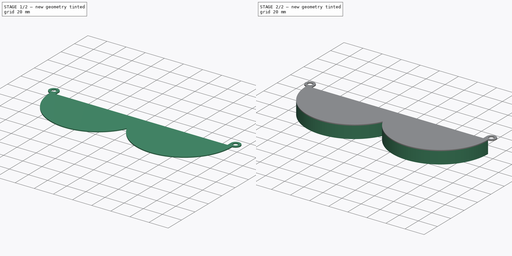
[diagram: build sequence overview — one tinted view per stage of 2, left to right]
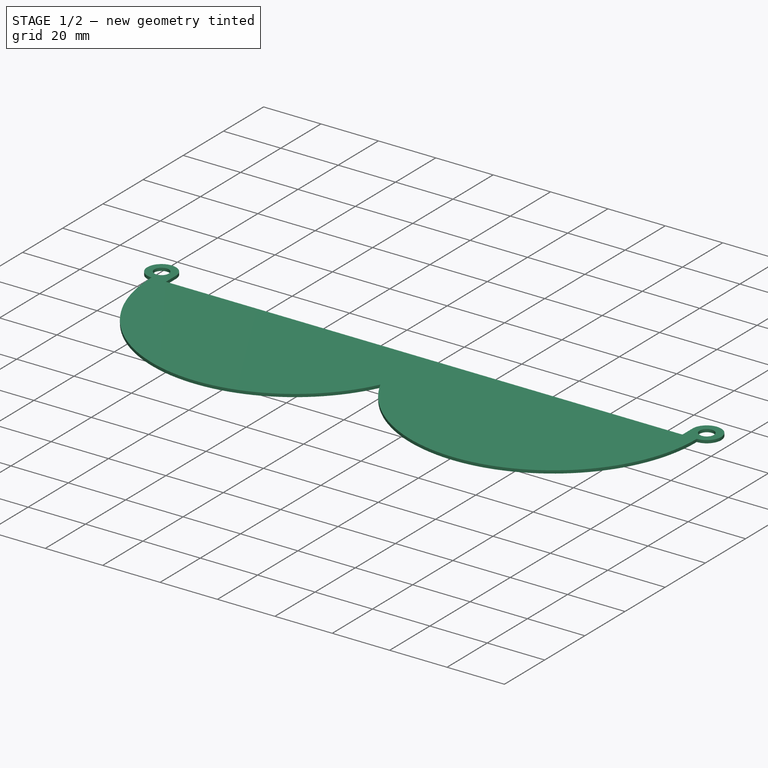
[diagram: stage 1 of 2 — iso view after this stage's code; geometry added in this stage tinted green]
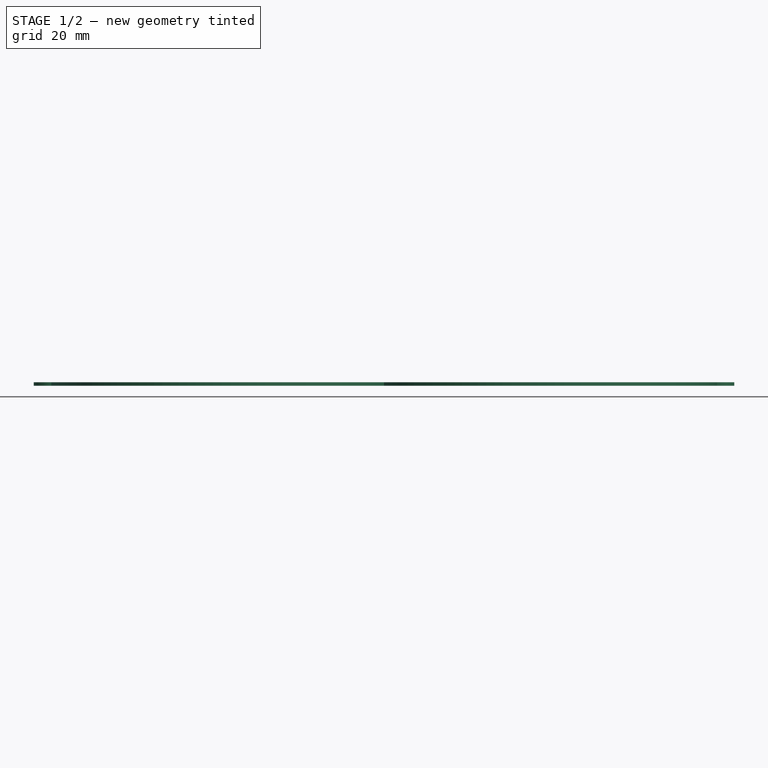
[diagram: stage 1 of 2 — front view after this stage's code; geometry added in this stage tinted green]
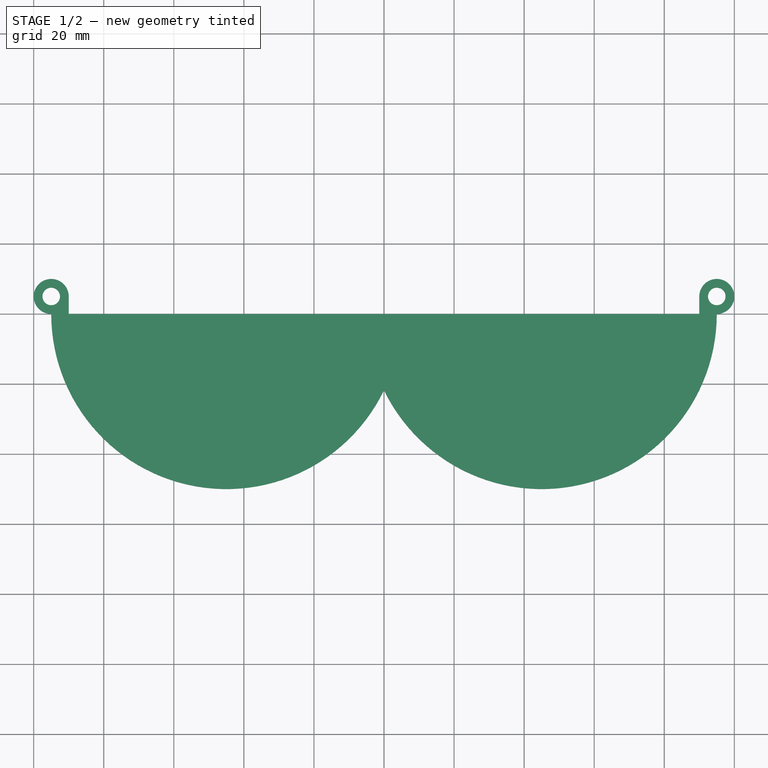
[diagram: stage 1 of 2 — top view after this stage's code; geometry added in this stage tinted green]
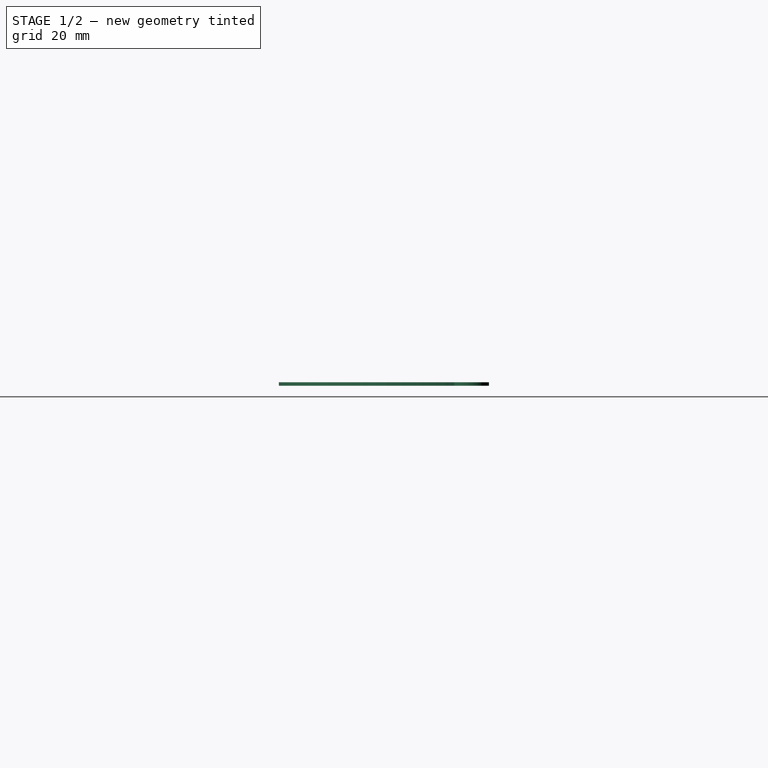
[diagram: stage 1 of 2 — right view after this stage's code; geometry added in this stage tinted green]
FCSTD DOCUMENT  (FreeCAD 0.20R6_voidlinux)
Label: gripNew
License: All rights reserved
LicenseURL: http://en.wikipedia.org/wiki/All_rights_reserved
objects: Sketcher::SketchObject×2, PartDesign::Pad×2, Spreadsheet::Sheet×1, PartDesign::Body×1
note: 7 computed .brp shape members not serialized (recipe doc carries the construction recipe); baked Part::Feature solids carry a one-line shape summary decoded from their .brp

FEATURE [Spreadsheet::Sheet] Spreadsheet
  cells = A1=Diameter; B1(Diameter)==90mm; A2=Padding; B2(Padding)==5mm; A3=Height; B3(Height)==0.5in; A4=AxleSupportDiameter; B4(AxleSupportDiameter)==10mm; C4(AxleSupportRadius)==AxleSupportDiameter / 2; A5=AxleDiameter; B5(AxleDiameter)==5mm; C5(AxleRadius)==AxleDiameter / 2; A6=Thickness; B6(Thickness)==1mm
FEATURE [Sketcher::SketchObject] Sketch
  FullyConstrained = true
  MapMode = 5
  Support = -> [XY_Plane]
  expr: Constraints[29] = Spreadsheet.Padding
  expr: Constraints[32] = Spreadsheet.AxleSupportRadius
  expr: Constraints[5] = Spreadsheet.Diameter
  expr: Constraints[64] = Spreadsheet.AxleRadius
  sketch-geometry (26):
    g0: LineSegment StartX=0 StartY=0 StartZ=0 EndX=45 EndY=0 EndZ=0
    g1: LineSegment StartX=45 StartY=0 StartZ=0 EndX=90 EndY=0 EndZ=0
    g2: LineSegment StartX=90 StartY=0 StartZ=0 EndX=95 EndY=-1.23e-14 EndZ=0
    g3: LineSegment StartX=0 StartY=0 StartZ=0 EndX=-45 EndY=0 EndZ=0
    g4: LineSegment StartX=-90 StartY=-9.4e-15 StartZ=0 EndX=-95 EndY=-9.4e-15 EndZ=0
    g5: Circle CenterX=-45 CenterY=0 CenterZ=0 NormalX=0 NormalY=0 NormalZ=1 AngleXU=0 Radius=50
    g6: Circle CenterX=45 CenterY=0 CenterZ=0 NormalX=0 NormalY=0 NormalZ=1 AngleXU=0 Radius=50
    g7: GeomPoint X=-7.1e-15 Y=-21.7945 Z=0
    g8: ArcOfCircle CenterX=45 CenterY=-1e-16 CenterZ=0 NormalX=0 NormalY=0 NormalZ=1 AngleXU=0 Radius=50 StartAngle=3.59262 EndAngle=6.28319
    g9: ArcOfCircle CenterX=-45 CenterY=6.6e-15 CenterZ=0 NormalX=0 NormalY=0 NormalZ=1 AngleXU=0 Radius=50 StartAngle=3.14159 EndAngle=5.83216
    g10: LineSegment StartX=-90 StartY=-9.4e-15 StartZ=0 EndX=-45 EndY=6.6e-15 EndZ=0
    g11: LineSegment StartX=95 StartY=-1.23e-14 StartZ=0 EndX=95 EndY=5 EndZ=0
    g12: LineSegment StartX=95 StartY=5 StartZ=0 EndX=90 EndY=5 EndZ=0
    g13: LineSegment StartX=-95 StartY=-9.4e-15 StartZ=0 EndX=-95 EndY=5 EndZ=0
    g14: LineSegment StartX=-95 StartY=5 StartZ=0 EndX=-90 EndY=5 EndZ=0
    g15: LineSegment StartX=95 StartY=5 StartZ=0 EndX=100 EndY=5 EndZ=0
    g16: ArcOfCircle CenterX=95 CenterY=5 CenterZ=0 NormalX=0 NormalY=0 NormalZ=1 AngleXU=0 Radius=5 StartAngle=4.71239 EndAngle=9.42478
    g17: LineSegment StartX=-95 StartY=5 StartZ=0 EndX=-100 EndY=5 EndZ=0
    g18: ArcOfCircle CenterX=-95 CenterY=5 CenterZ=0 NormalX=0 NormalY=0 NormalZ=1 AngleXU=0 Radius=5 StartAngle=6.2e-15 EndAngle=4.71239
    g19: LineSegment StartX=-90 StartY=5 StartZ=0 EndX=-90 EndY=0 EndZ=0
    g20: LineSegment StartX=90 StartY=5 StartZ=0 EndX=90 EndY=0 EndZ=0
    g21: LineSegment StartX=-90 StartY=0 StartZ=0 EndX=90 EndY=0 EndZ=0
    g22: LineSegment StartX=95 StartY=5 StartZ=0 EndX=95 EndY=7.5 EndZ=0
    g23: Circle CenterX=95 CenterY=5 CenterZ=0 NormalX=0 NormalY=0 NormalZ=1 AngleXU=0 Radius=2.5
    g24: LineSegment StartX=-95 StartY=5 StartZ=0 EndX=-95 EndY=7.5 EndZ=0
    g25: Circle CenterX=-95 CenterY=5 CenterZ=0 NormalX=0 NormalY=0 NormalZ=1 AngleXU=0 Radius=2.5
  constraints (72):
    c: Coincident(g0,g-1)
    c: PointOnObject(g0,g-1)
    c: Coincident(g1,g0)
    c: PointOnObject(g1,g-1)
    c: Equal(g1,g0)
    c: Distance(g0,g1) = 90
    c: Coincident(g2,g1)
    c: PointOnObject(g2,g-1)
    c: Coincident(g3,g0)
    c: PointOnObject(g3,g-1)
    c: Equal(g3,g0)
    c: PointOnObject(g4,g-1)
    c: Horizontal(g4)
    c: Equal(g4,g2)
    c: Coincident(g5,g3)
    c: PointOnObject(g4,g5)
    c: Coincident(g6,g0)
    c: PointOnObject(g2,g6)
    c: PointOnObject(g7,g6)
    c: PointOnObject(g7,g5)
    c: Coincident(g8,g7)
    c: Coincident(g8,g2)
    c: Tangent(g8,g6)
    c: Coincident(g9,g8)
    c: Coincident(g9,g4)
    c: Tangent(g9,g5)
    c: Coincident(g10,g4)
    c: Coincident(g10,g9)
    c: Equal(g10,g3)
    c: Distance(g2) = 5
    c: Coincident(g11,g8)
    c: Vertical(g11)
    c: Distance(g11) = 5
    c: Coincident(g12,g11)
    c: Horizontal(g12)
    c: Coincident(g13,g9)
    c: Vertical(g13)
    c: Equal(g13,g11)
    c: Coincident(g14,g13)
    c: Horizontal(g14)
    c: Equal(g14,g13)
    c: Equal(g12,g11)
    c: Coincident(g15,g11)
    c: Horizontal(g15)
    c: Equal(g15,g12)
    c: Coincident(g16,g12)
    c: Coincident(g16,g8)
    c: PointOnObject(g15,g16)
    c: Coincident(g17,g13)
    c: Horizontal(g17)
    c: Equal(g17,g14)
    c: Coincident(g18,g9)
    c: Coincident(g18,g14)
    c: PointOnObject(g17,g18)
    c: Coincident(g19,g18)
    c: Vertical(g19)
    c: PointOnObject(g19,g-1)
    c: Coincident(g20,g16)
    c: Vertical(g20)
    c: PointOnObject(g20,g-1)
    c: Coincident(g21,g19)
    c: Coincident(g21,g20)
    c: Coincident(g22,g16)
    c: Vertical(g22)
    c: Distance(g22) = 2.5
    c: Coincident(g23,g16)
    c: PointOnObject(g22,g23)
    c: Coincident(g24,g18)
    c: Vertical(g24)
    c: Equal(g24,g22)
    c: Coincident(g25,g18)
    c: PointOnObject(g24,g25)
FEATURE [PartDesign::Pad] Pad
  Direction = (0,0,1)
  Length = 1
  Length2 = 10
  Profile = -> Sketch
  ReferenceAxis = -> Sketch [N_Axis]
  Type = 0
  expr: Length = Spreadsheet.Thickness
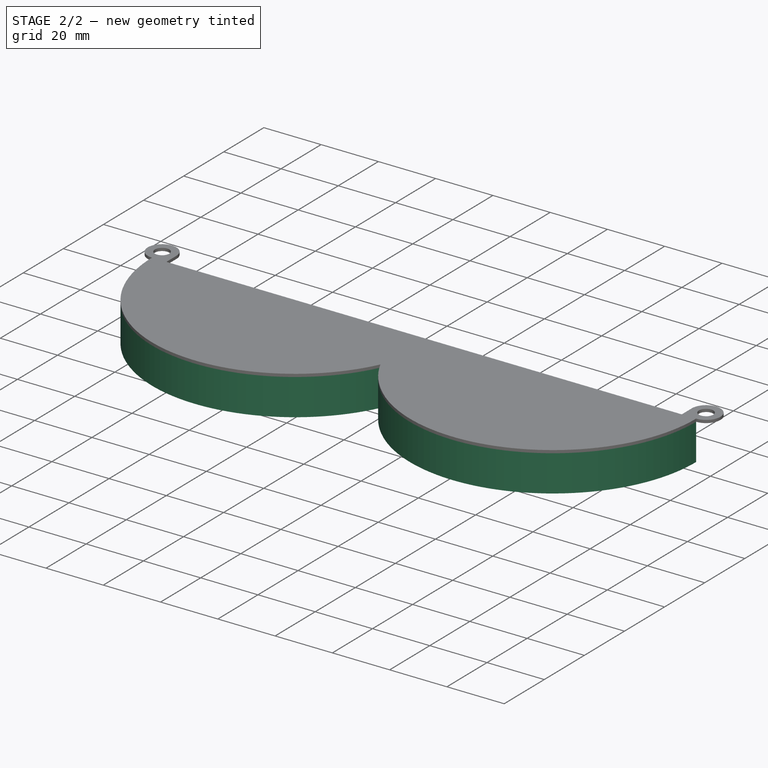
[diagram: stage 2 of 2 — iso view after this stage's code; geometry added in this stage tinted green]
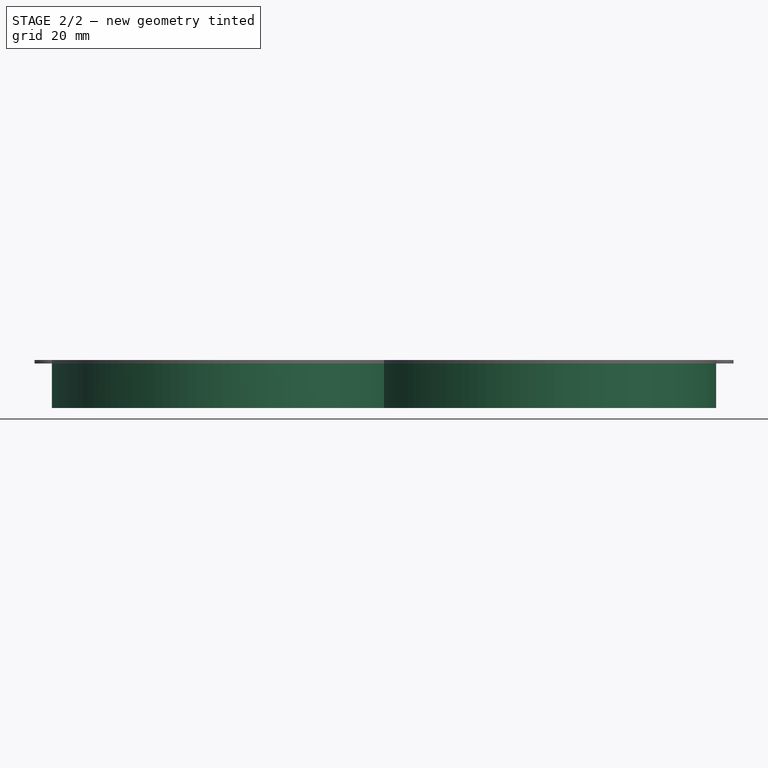
[diagram: stage 2 of 2 — front view after this stage's code; geometry added in this stage tinted green]
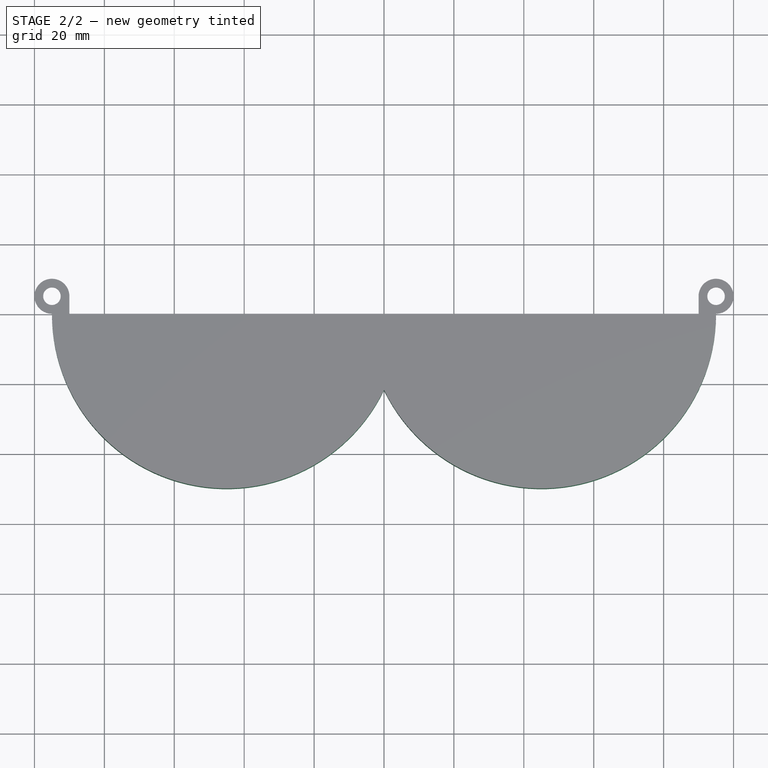
[diagram: stage 2 of 2 — top view after this stage's code; geometry added in this stage tinted green]
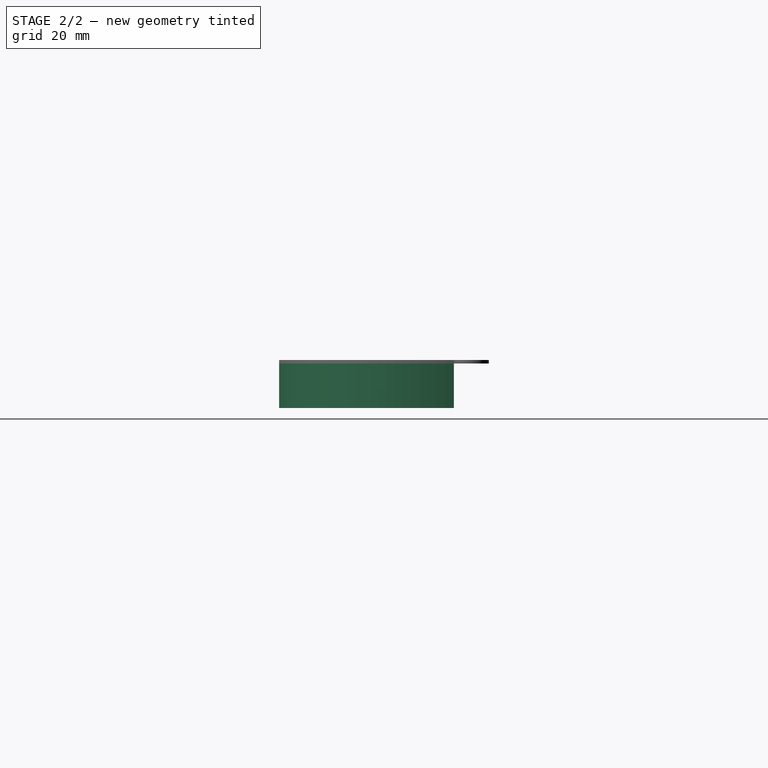
[diagram: stage 2 of 2 — right view after this stage's code; geometry added in this stage tinted green]
FEATURE [Sketcher::SketchObject] Sketch001
  FullyConstrained = true
  MapMode = 5
  Placement = pos=(0,0,0) rot=(1,0,0;3.14159rad)
  Support = -> [Pad]
  expr: Constraints[18] = Spreadsheet.Padding
  expr: Constraints[5] = Spreadsheet.Diameter
  sketch-geometry (17):
    g0: LineSegment StartX=0 StartY=0 StartZ=0 EndX=45 EndY=0 EndZ=0
    g1: LineSegment StartX=45 StartY=0 StartZ=0 EndX=90 EndY=0 EndZ=0
    g2: Circle CenterX=45 CenterY=0 CenterZ=0 NormalX=0 NormalY=0 NormalZ=1 AngleXU=0 Radius=45
    g3: LineSegment StartX=0 StartY=0 StartZ=0 EndX=-45 EndY=0 EndZ=0
    g4: LineSegment StartX=-45 StartY=0 StartZ=0 EndX=-90 EndY=0 EndZ=0
    g5: Circle CenterX=-45 CenterY=0 CenterZ=0 NormalX=0 NormalY=0 NormalZ=1 AngleXU=0 Radius=45
    g6: LineSegment StartX=90 StartY=0 StartZ=0 EndX=95 EndY=5e-16 EndZ=0
    g7: LineSegment StartX=-90 StartY=0 StartZ=0 EndX=-95 EndY=4.1391e-12 EndZ=0
    g8: LineSegment StartX=-95 StartY=4.1391e-12 StartZ=0 EndX=-85.5 EndY=19.615 EndZ=0
    g9: LineSegment StartX=95 StartY=5e-16 StartZ=0 EndX=85.5 EndY=19.615 EndZ=0
    g10: ArcOfCircle CenterX=-45 CenterY=-4e-16 CenterZ=0 NormalX=0 NormalY=0 NormalZ=1 AngleXU=0 Radius=45 StartAngle=0 EndAngle=2.69057
    g11: ArcOfCircle CenterX=45 CenterY=0 CenterZ=0 NormalX=0 NormalY=0 NormalZ=1 AngleXU=0 Radius=45 StartAngle=0.451027 EndAngle=3.14159
    g12: Circle CenterX=45 CenterY=0 CenterZ=0 NormalX=0 NormalY=0 NormalZ=1 AngleXU=0 Radius=50
    g13: Circle CenterX=-45 CenterY=-4e-16 CenterZ=0 NormalX=0 NormalY=0 NormalZ=1 AngleXU=0 Radius=50
    g14: GeomPoint X=0 Y=21.7945 Z=0
    g15: ArcOfCircle CenterX=45 CenterY=5e-16 CenterZ=0 NormalX=0 NormalY=0 NormalZ=1 AngleXU=0 Radius=50 StartAngle=0 EndAngle=2.69057
    g16: ArcOfCircle CenterX=-45 CenterY=1.0909e-12 CenterZ=0 NormalX=0 NormalY=0 NormalZ=1 AngleXU=0 Radius=50 StartAngle=0.451027 EndAngle=3.14159
  constraints (44):
    c: Coincident(g0,g-1)
    c: PointOnObject(g0,g-1)
    c: Coincident(g1,g0)
    c: PointOnObject(g1,g-1)
    c: Equal(g1,g0)
    c: Distance(g0,g1) = 90
    c: Coincident(g2,g0)
    c: PointOnObject(g0,g2)
    c: Coincident(g3,g0)
    c: PointOnObject(g3,g-1)
    c: Coincident(g4,g3)
    c: PointOnObject(g4,g-1)
    c: Equal(g4,g3)
    c: Equal(g3,g0)
    c: Coincident(g5,g3)
    c: PointOnObject(g0,g5)
    c: Coincident(g6,g1)
    c: PointOnObject(g6,g-1)
    c: Distance(g6) = 5
    c: Coincident(g7,g4)
    c: PointOnObject(g7,g-1)
    c: Equal(g7,g6)
    c: Coincident(g8,g7)
    c: Tangent(g8,g5) = 1.5708
    c: Coincident(g9,g6)
    c: Tangent(g9,g2) = -1.5708
    c: Coincident(g10,g8)
    c: Coincident(g10,g0)
    c: Tangent(g10,g5)
    c: Coincident(g11,g9)
    c: Coincident(g11,g10)
    c: Tangent(g11,g2)
    c: Coincident(g12,g11)
    c: PointOnObject(g9,g12)
    c: Coincident(g13,g10)
    c: PointOnObject(g8,g13)
    c: PointOnObject(g14,g13)
    c: PointOnObject(g14,g12)
    c: Coincident(g15,g14)
    c: Coincident(g15,g9)
    c: Tangent(g15,g12)
    c: Coincident(g16,g15)
    c: Coincident(g16,g8)
    c: Tangent(g16,g13)
FEATURE [PartDesign::Pad] Pad001
  BaseFeature = -> Pad
  Direction = (0,0,-1)
  Length = 12.7
  Length2 = 10
  Profile = -> Sketch001
  ReferenceAxis = -> Sketch001 [N_Axis]
  Type = 0
  expr: Length = Spreadsheet.Height
FEATURE [PartDesign::Body] Body
  Group = -> [Sketch,Pad,Sketch001,Pad001]
  Origin = -> Origin
  Tip = -> Pad001
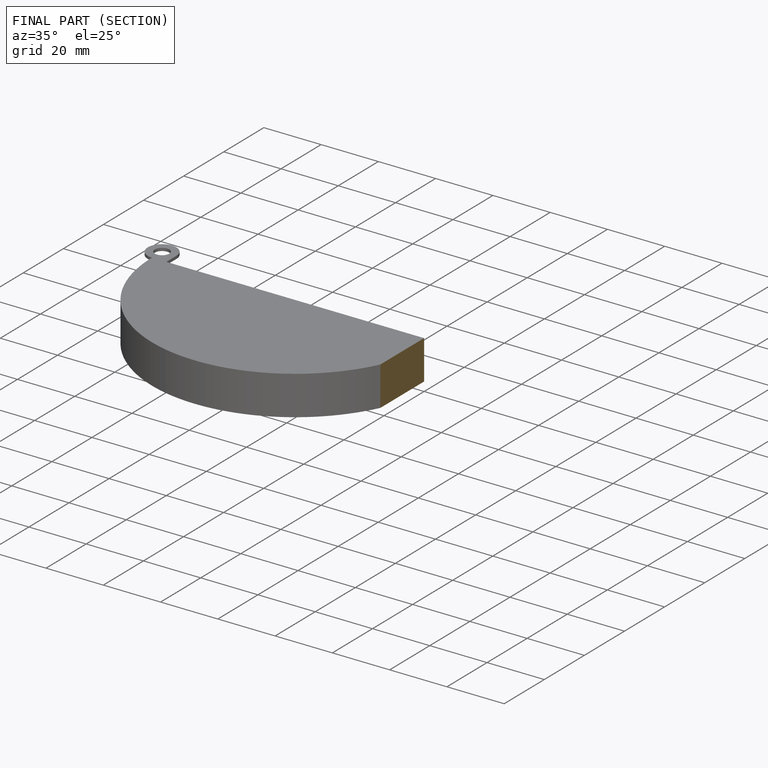
[diagram: finished part — half-section view (interior)]
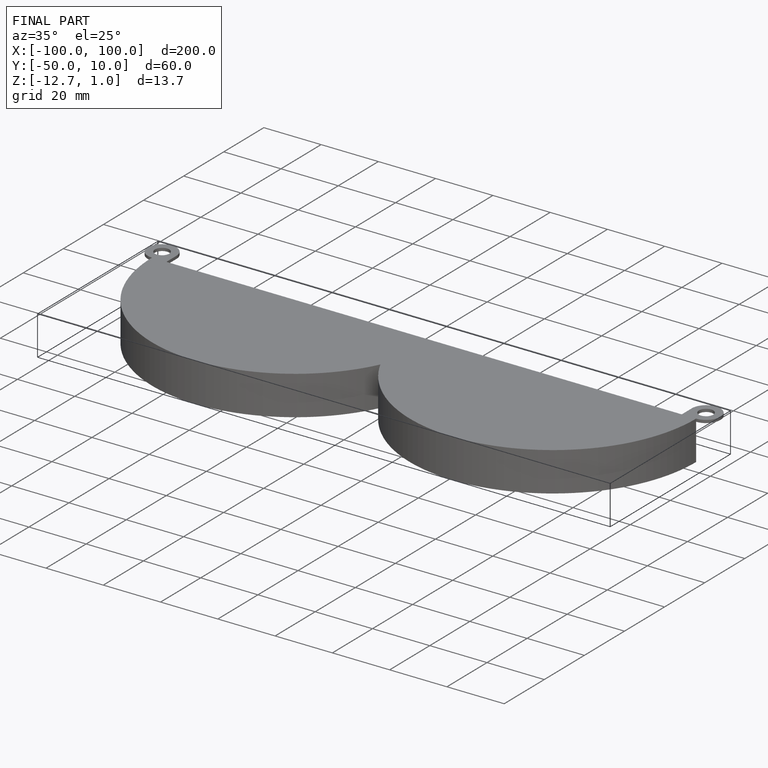
[diagram: finished part — iso view with bounding-box wireframe]
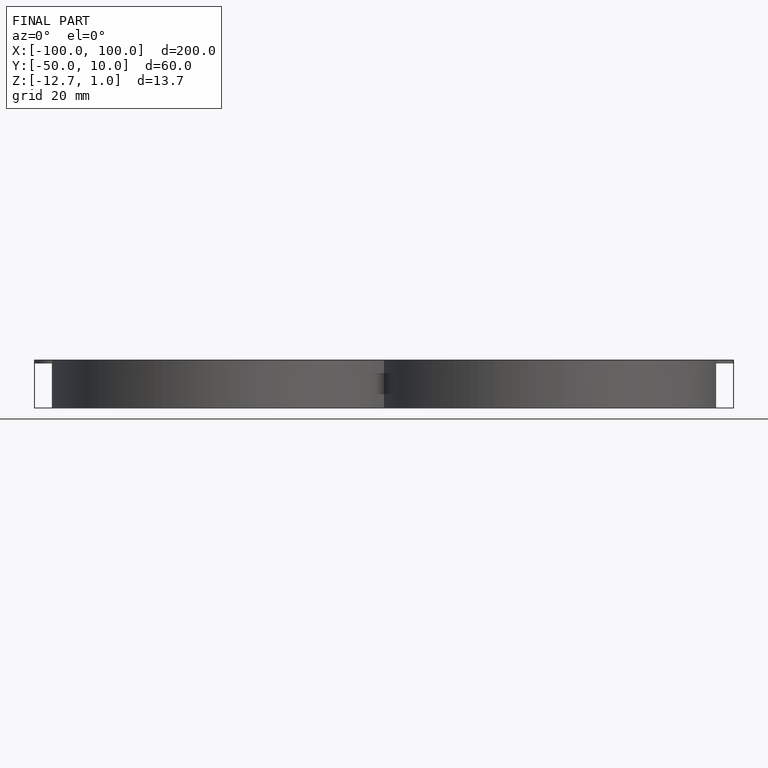
[diagram: finished part — front view with bounding-box wireframe]
